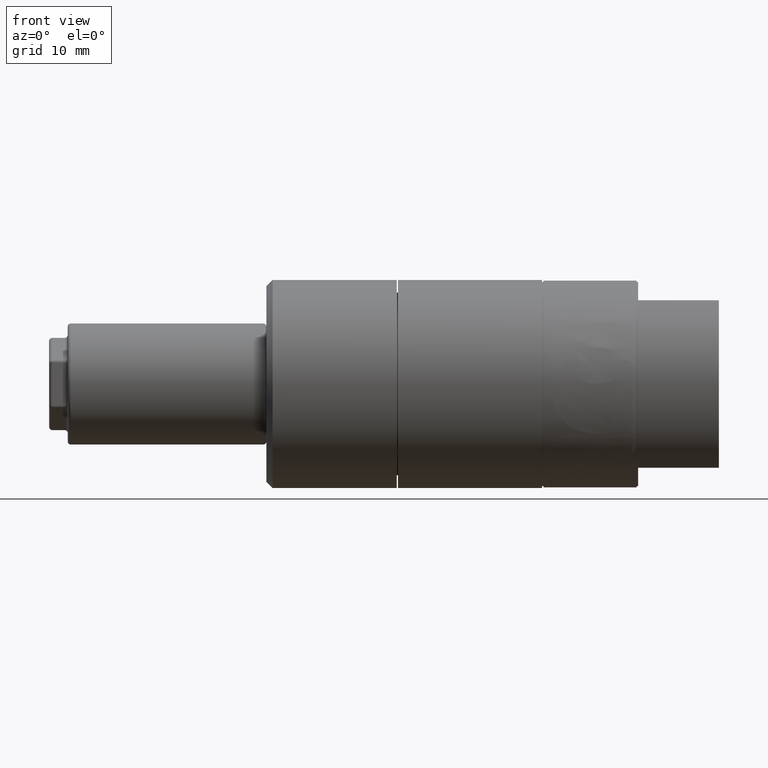
[diagram: clean part render]
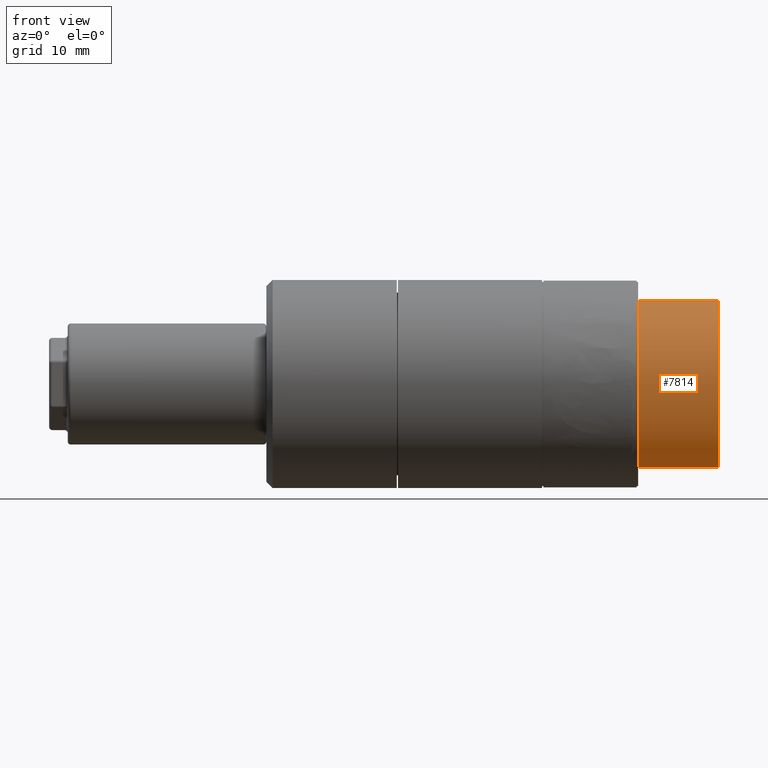
[diagram: same view with one face highlighted and labeled with its STEP entity id]
A machine part, front view. The second image highlights one B-rep face of the part: STEP entity #7814.
In plain terms, the highlighted cylindrical surface (partial cylindrical patch) has radius 16.75 mm, axis along (1, 0, 0).
Its self-contained STEP definition (entity closure, byte-faithful):
#711 = CARTESIAN_POINT ( 'NONE',  ( -13.00000000000000000, -9.915266007525961100, 13.50000000000000000 ) ) ;
#902 = VECTOR ( 'NONE', #11642, 1000.000000000000000 ) ;
#1131 = DIRECTION ( 'NONE',  ( 0.0000000000000000000, 0.0000000000000000000, -1.000000000000000000 ) ) ;
#1390 = ORIENTED_EDGE ( 'NONE', *, *, #18286, .T. ) ;
#2182 = EDGE_CURVE ( 'NONE', #2275, #15451, #8476, .T. ) ;
#2275 = VERTEX_POINT ( 'NONE', #10385 ) ;
#2403 = LINE ( 'NONE', #9750, #5776 ) ;
#2570 = VERTEX_POINT ( 'NONE', #13821 ) ;
#2666 = FACE_OUTER_BOUND ( 'NONE', #2787, .T. ) ;
#2787 = EDGE_LOOP ( 'NONE', ( #15699, #8551, #3217, #1390 ) ) ;
#3217 = ORIENTED_EDGE ( 'NONE', *, *, #2182, .F. ) ;
#3259 = AXIS2_PLACEMENT_3D ( 'NONE', #15359, #13914, #1131 ) ;
#4227 = CARTESIAN_POINT ( 'NONE',  ( 0.0000000000000000000, -9.915266007525970000, -13.50000000000000000 ) ) ;
#5296 = EDGE_CURVE ( 'NONE', #5761, #2570, #16902, .T. ) ;
#5761 = VERTEX_POINT ( 'NONE', #711 ) ;
#5776 = VECTOR ( 'NONE', #18565, 1000.000000000000000 ) ;
#5871 = DIRECTION ( 'NONE',  ( 1.000000000000000000, 0.0000000000000000000, 0.0000000000000000000 ) ) ;
#5989 = DIRECTION ( 'NONE',  ( 0.0000000000000000000, 0.0000000000000000000, -1.000000000000000000 ) ) ;
#7383 = CYLINDRICAL_SURFACE ( 'NONE', #13768, 16.75000000000000000 ) ;
#7814 = ADVANCED_FACE ( 'NONE', ( #2666 ), #7383, .T. ) ;
#8346 = LINE ( 'NONE', #14678, #902 ) ;
#8476 = CIRCLE ( 'NONE', #3259, 16.75000000000000000 ) ;
#8551 = ORIENTED_EDGE ( 'NONE', *, *, #11950, .T. ) ;
#9750 = CARTESIAN_POINT ( 'NONE',  ( 0.0000000000000000000, -9.915266007525961100, -13.50000000000000000 ) ) ;
#10385 = CARTESIAN_POINT ( 'NONE',  ( 0.0000000000000000000, -9.915266007525961100, 13.50000000000000000 ) ) ;
#11642 = DIRECTION ( 'NONE',  ( -1.000000000000000000, -0.0000000000000000000, -0.0000000000000000000 ) ) ;
#11950 = EDGE_CURVE ( 'NONE', #2570, #15451, #2403, .T. ) ;
#12387 = AXIS2_PLACEMENT_3D ( 'NONE', #15975, #5871, #5989 ) ;
#12927 = DIRECTION ( 'NONE',  ( 0.0000000000000000000, 0.0000000000000000000, -1.000000000000000000 ) ) ;
#13768 = AXIS2_PLACEMENT_3D ( 'NONE', #18313, #18375, #12927 ) ;
#13821 = CARTESIAN_POINT ( 'NONE',  ( -13.00000000000000000, -9.915266007525961100, -13.50000000000000000 ) ) ;
#13914 = DIRECTION ( 'NONE',  ( 1.000000000000000000, 0.0000000000000000000, 0.0000000000000000000 ) ) ;
#14678 = CARTESIAN_POINT ( 'NONE',  ( 0.0000000000000000000, -9.915266007525961100, 13.50000000000000000 ) ) ;
#15359 = CARTESIAN_POINT ( 'NONE',  ( 0.0000000000000000000, 0.0000000000000000000, 0.0000000000000000000 ) ) ;
#15451 = VERTEX_POINT ( 'NONE', #4227 ) ;
#15699 = ORIENTED_EDGE ( 'NONE', *, *, #5296, .T. ) ;
#15975 = CARTESIAN_POINT ( 'NONE',  ( -13.00000000000000000, 0.0000000000000000000, 0.0000000000000000000 ) ) ;
#16902 = CIRCLE ( 'NONE', #12387, 16.75000000000000000 ) ;
#18286 = EDGE_CURVE ( 'NONE', #2275, #5761, #8346, .T. ) ;
#18313 = CARTESIAN_POINT ( 'NONE',  ( 0.0000000000000000000, 0.0000000000000000000, 0.0000000000000000000 ) ) ;
#18375 = DIRECTION ( 'NONE',  ( 1.000000000000000000, 0.0000000000000000000, 0.0000000000000000000 ) ) ;
#18565 = DIRECTION ( 'NONE',  ( 1.000000000000000000, 0.0000000000000000000, 0.0000000000000000000 ) ) ;